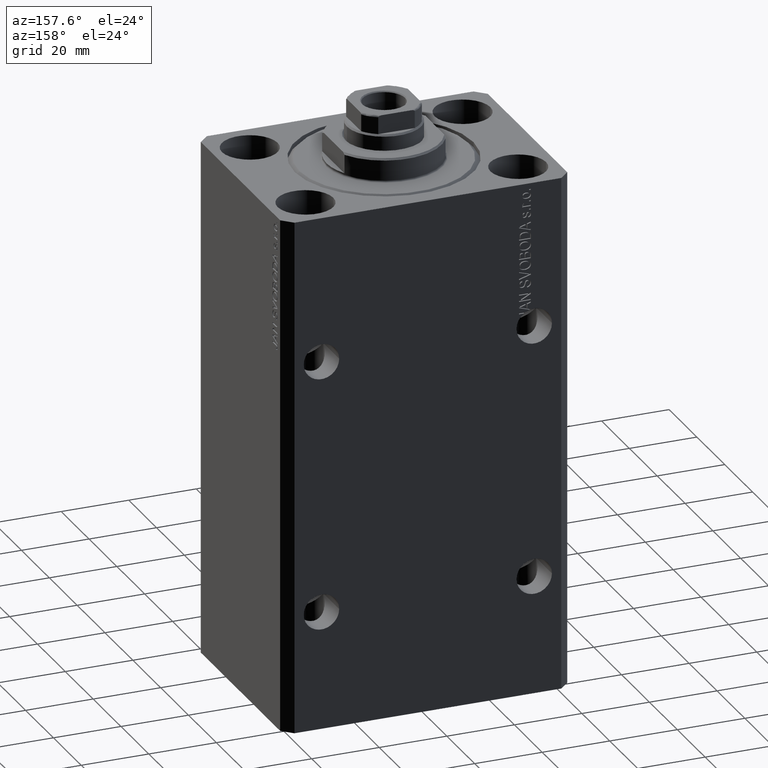
[diagram: clean part render]
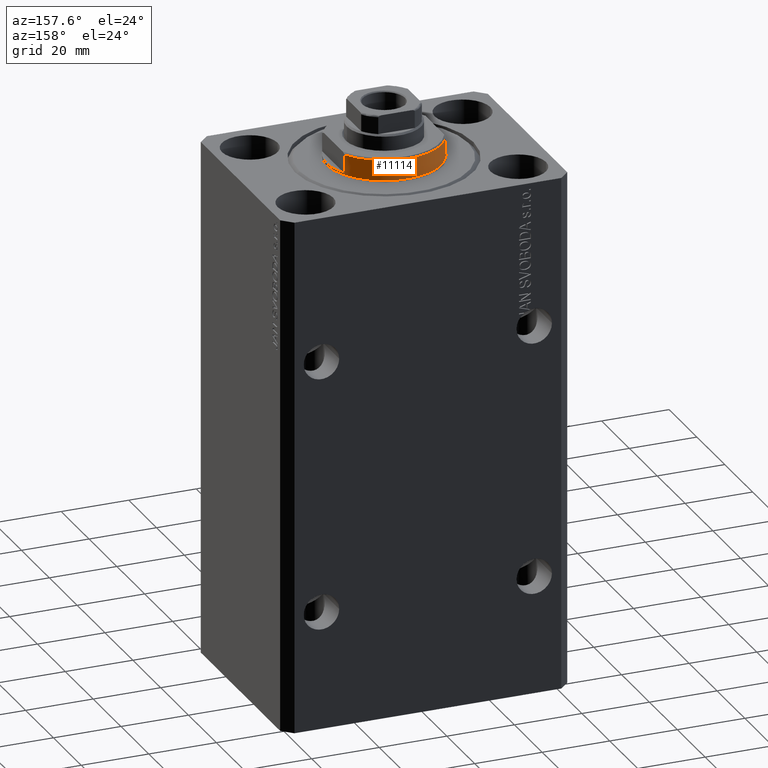
[diagram: same view with one face highlighted and labeled with its STEP entity id]
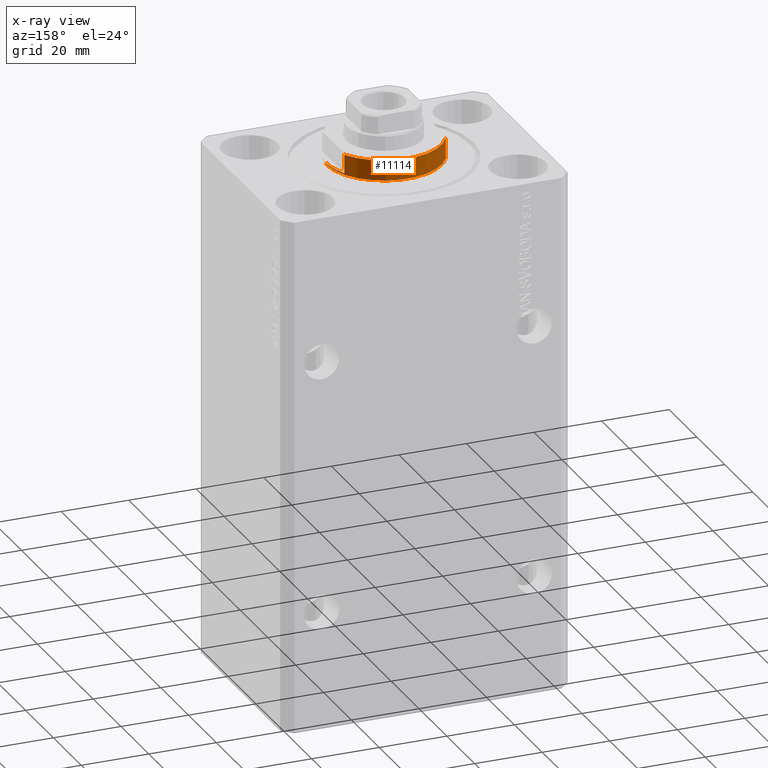
[diagram: x-ray of the same camera — body ghosted, the highlighted face saturated]
A machine part, auxiliary view. The second image highlights one B-rep face of the part: STEP entity #11114.
The next image is the same camera in x-ray: the body ghosted, the highlighted face saturated — about 0% of this face is hidden behind the body in this view.
In plain terms, the highlighted cylindrical surface (partial cylindrical patch) has radius 17 mm, axis along (0, 0, -1).
Its self-contained STEP definition (entity closure, byte-faithful):
#411 = CARTESIAN_POINT ( 'NONE',  ( 17.00000000000000000, 0.000000000000000000, -7.000000000000000000 ) ) ;
#998 = CIRCLE ( 'NONE', #6863, 17.00000000000000000 ) ;
#3021 = VERTEX_POINT ( 'NONE', #34025 ) ;
#3356 = CARTESIAN_POINT ( 'NONE',  ( 0.000000000000000000, 0.000000000000000000, -0.4999999999999995559 ) ) ;
#3423 = CARTESIAN_POINT ( 'NONE',  ( -15.00000000000000000, 8.000000000000001776, -7.000000000000000000 ) ) ;
#4670 = CYLINDRICAL_SURFACE ( 'NONE', #43752, 17.00000000000000000 ) ;
#4817 = CARTESIAN_POINT ( 'NONE',  ( 0.000000000000000000, 0.000000000000000000, -1.000000000000000000 ) ) ;
#5179 = CARTESIAN_POINT ( 'NONE',  ( -17.00000000000000000, 2.081899558550500280E-15, -7.000000000000000000 ) ) ;
#5568 = FACE_OUTER_BOUND ( 'NONE', #6120, .T. ) ;
#6057 = DIRECTION ( 'NONE',  ( 0.000000000000000000, 0.000000000000000000, 1.000000000000000000 ) ) ;
#6120 = EDGE_LOOP ( 'NONE', ( #12100, #38674, #29551, #30170, #18736, #34555, #37046, #25463 ) ) ;
#6510 = DIRECTION ( 'NONE',  ( -1.000000000000000000, 0.000000000000000000, 0.000000000000000000 ) ) ;
#6863 = AXIS2_PLACEMENT_3D ( 'NONE', #4817, #36881, #15804 ) ;
#7135 = VECTOR ( 'NONE', #15065, 1000.000000000000000 ) ;
#7962 = LINE ( 'NONE', #411, #7135 ) ;
#9274 = CARTESIAN_POINT ( 'NONE',  ( 17.00000000000000000, 0.000000000000000000, -1.000000000000000000 ) ) ;
#9937 = EDGE_CURVE ( 'NONE', #18510, #24200, #34174, .T. ) ;
#9989 = VERTEX_POINT ( 'NONE', #9274 ) ;
#10053 = CIRCLE ( 'NONE', #14427, 17.00000000000000000 ) ;
#10887 = DIRECTION ( 'NONE',  ( -0.000000000000000000, -0.000000000000000000, -1.000000000000000000 ) ) ;
#11114 = ADVANCED_FACE ( 'NONE', ( #5568 ), #4670, .T. ) ;
#12100 = ORIENTED_EDGE ( 'NONE', *, *, #35615, .F. ) ;
#13023 = VECTOR ( 'NONE', #20139, 1000.000000000000000 ) ;
#14427 = AXIS2_PLACEMENT_3D ( 'NONE', #23519, #42012, #37490 ) ;
#14768 = DIRECTION ( 'NONE',  ( 1.000000000000000000, 0.000000000000000000, 0.000000000000000000 ) ) ;
#15065 = DIRECTION ( 'NONE',  ( -0.000000000000000000, -0.000000000000000000, 1.000000000000000000 ) ) ;
#15166 = EDGE_CURVE ( 'NONE', #21710, #9989, #10053, .T. ) ;
#15804 = DIRECTION ( 'NONE',  ( -1.000000000000000000, 0.000000000000000000, 0.000000000000000000 ) ) ;
#16223 = EDGE_CURVE ( 'NONE', #3021, #24122, #41574, .T. ) ;
#16626 = EDGE_CURVE ( 'NONE', #9989, #24122, #7962, .T. ) ;
#17290 = EDGE_CURVE ( 'NONE', #24200, #45116, #34816, .T. ) ;
#18510 = VERTEX_POINT ( 'NONE', #21447 ) ;
#18736 = ORIENTED_EDGE ( 'NONE', *, *, #15166, .F. ) ;
#18870 = CARTESIAN_POINT ( 'NONE',  ( 0.000000000000000000, 0.000000000000000000, -7.000000000000000000 ) ) ;
#20101 = CARTESIAN_POINT ( 'NONE',  ( 17.00000000000000000, 0.000000000000000000, -0.4999999999999995559 ) ) ;
#20139 = DIRECTION ( 'NONE',  ( -0.000000000000000000, -0.000000000000000000, 1.000000000000000000 ) ) ;
#20806 = CARTESIAN_POINT ( 'NONE',  ( 14.99999999999999645, 8.000000000000003553, -1.000000000000000000 ) ) ;
#21447 = CARTESIAN_POINT ( 'NONE',  ( 15.00000000000000000, 8.000000000000001776, -6.500000000000013323 ) ) ;
#21710 = VERTEX_POINT ( 'NONE', #20806 ) ;
#22520 = AXIS2_PLACEMENT_3D ( 'NONE', #3356, #10887, #14768 ) ;
#23519 = CARTESIAN_POINT ( 'NONE',  ( 0.000000000000000000, 0.000000000000000000, -1.000000000000000000 ) ) ;
#24122 = VERTEX_POINT ( 'NONE', #20101 ) ;
#24200 = VERTEX_POINT ( 'NONE', #34547 ) ;
#25463 = ORIENTED_EDGE ( 'NONE', *, *, #17290, .T. ) ;
#25694 = VERTEX_POINT ( 'NONE', #34898 ) ;
#27282 = DIRECTION ( 'NONE',  ( -0.000000000000000000, -0.000000000000000000, 1.000000000000000000 ) ) ;
#27512 = LINE ( 'NONE', #34606, #43404 ) ;
#28006 = CARTESIAN_POINT ( 'NONE',  ( -14.99999999999999645, 8.000000000000003553, -1.000000000000000000 ) ) ;
#28326 = AXIS2_PLACEMENT_3D ( 'NONE', #41360, #6057, #6510 ) ;
#29206 = DIRECTION ( 'NONE',  ( 1.000000000000000000, 0.000000000000000000, 0.000000000000000000 ) ) ;
#29551 = ORIENTED_EDGE ( 'NONE', *, *, #16223, .T. ) ;
#30156 = LINE ( 'NONE', #5179, #39753 ) ;
#30170 = ORIENTED_EDGE ( 'NONE', *, *, #16626, .F. ) ;
#31691 = EDGE_CURVE ( 'NONE', #18510, #21710, #27512, .T. ) ;
#33139 = EDGE_CURVE ( 'NONE', #25694, #3021, #30156, .T. ) ;
#34025 = CARTESIAN_POINT ( 'NONE',  ( -17.00000000000000000, 2.081899558550500280E-15, -0.4999999999999995559 ) ) ;
#34174 = CIRCLE ( 'NONE', #28326, 17.00000000000000000 ) ;
#34547 = CARTESIAN_POINT ( 'NONE',  ( -15.00000000000000000, 8.000000000000001776, -6.500000000000013323 ) ) ;
#34555 = ORIENTED_EDGE ( 'NONE', *, *, #31691, .F. ) ;
#34606 = CARTESIAN_POINT ( 'NONE',  ( 15.00000000000000000, 8.000000000000001776, -7.000000000000000000 ) ) ;
#34816 = LINE ( 'NONE', #3423, #13023 ) ;
#34898 = CARTESIAN_POINT ( 'NONE',  ( -17.00000000000000000, 2.081899558550500280E-15, -1.000000000000000000 ) ) ;
#35615 = EDGE_CURVE ( 'NONE', #25694, #45116, #998, .T. ) ;
#36881 = DIRECTION ( 'NONE',  ( 0.000000000000000000, 0.000000000000000000, -1.000000000000000000 ) ) ;
#37046 = ORIENTED_EDGE ( 'NONE', *, *, #9937, .T. ) ;
#37490 = DIRECTION ( 'NONE',  ( -1.000000000000000000, 0.000000000000000000, 0.000000000000000000 ) ) ;
#38674 = ORIENTED_EDGE ( 'NONE', *, *, #33139, .T. ) ;
#39753 = VECTOR ( 'NONE', #40249, 1000.000000000000000 ) ;
#40249 = DIRECTION ( 'NONE',  ( -0.000000000000000000, -0.000000000000000000, 1.000000000000000000 ) ) ;
#41360 = CARTESIAN_POINT ( 'NONE',  ( 0.000000000000000000, 0.000000000000000000, -6.500000000000013323 ) ) ;
#41574 = CIRCLE ( 'NONE', #22520, 17.00000000000000000 ) ;
#42012 = DIRECTION ( 'NONE',  ( 0.000000000000000000, 0.000000000000000000, -1.000000000000000000 ) ) ;
#43404 = VECTOR ( 'NONE', #27282, 1000.000000000000000 ) ;
#43418 = DIRECTION ( 'NONE',  ( -0.000000000000000000, -0.000000000000000000, 1.000000000000000000 ) ) ;
#43752 = AXIS2_PLACEMENT_3D ( 'NONE', #18870, #43418, #29206 ) ;
#45116 = VERTEX_POINT ( 'NONE', #28006 ) ;